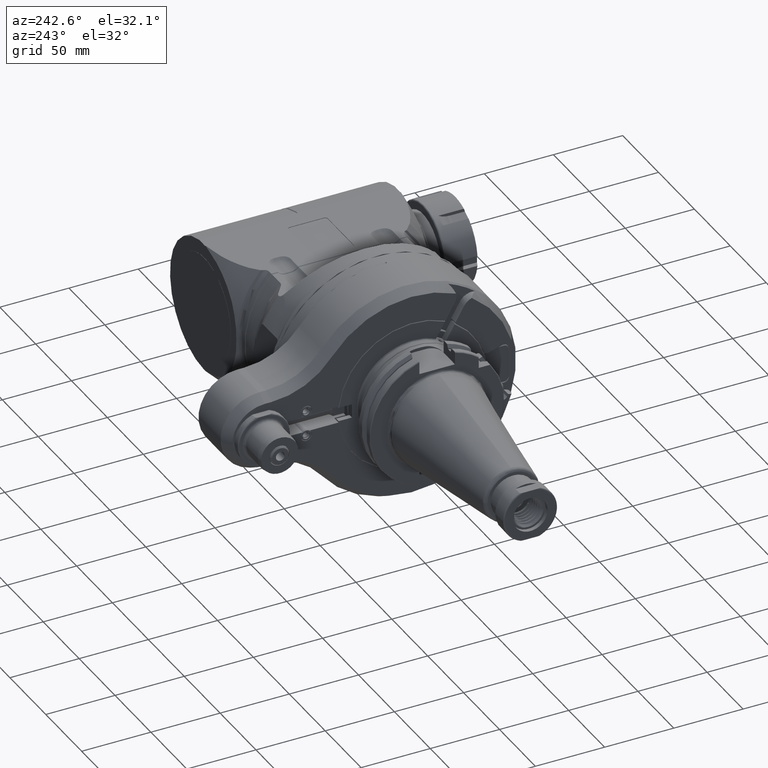
[diagram: clean part render]
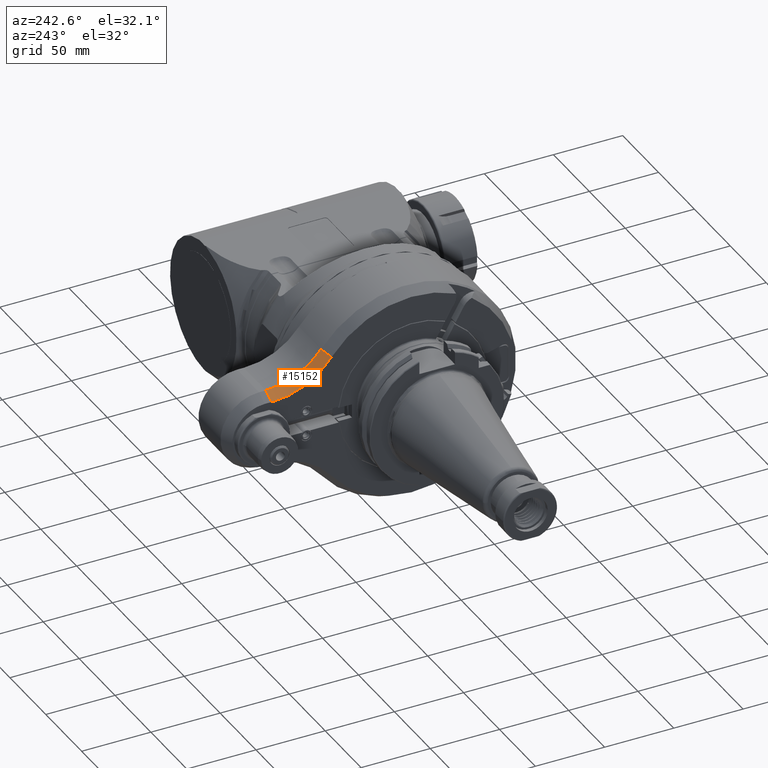
[diagram: same view with one face highlighted and labeled with its STEP entity id]
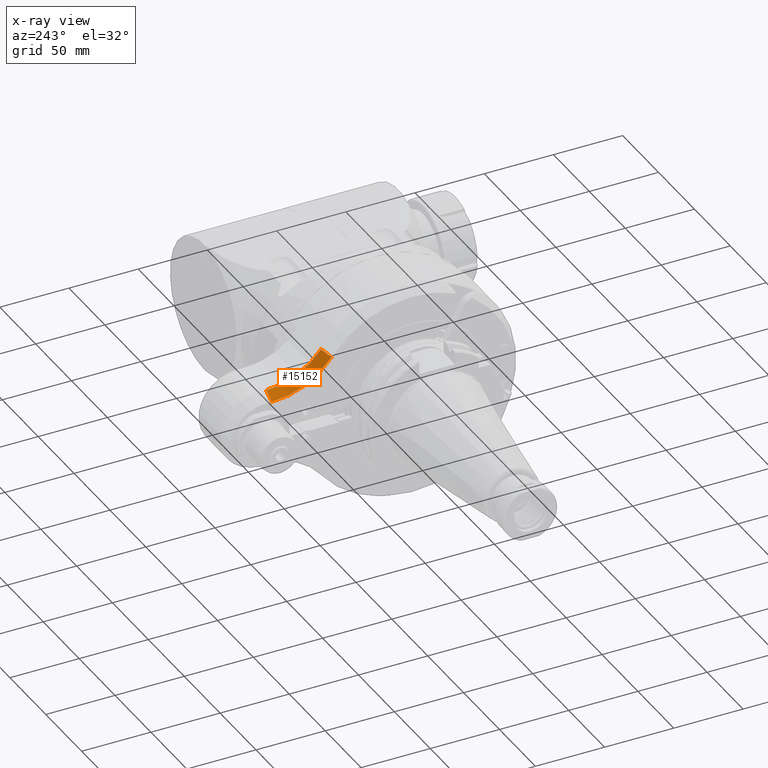
[diagram: x-ray of the same camera — body ghosted, the highlighted face saturated]
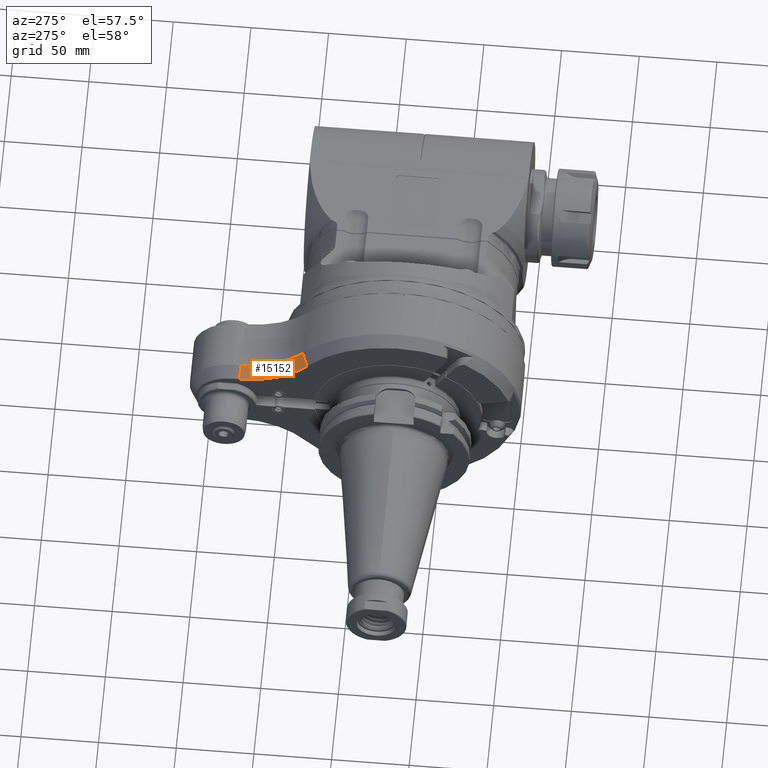
[diagram: same view with one face highlighted and labeled with its STEP entity id]
A machine part, auxiliary view. The second image highlights one B-rep face of the part: STEP entity #15152.
The next image is the same camera in x-ray: the body ghosted, the highlighted face saturated — about 0% of this face is hidden behind the body in this view.
A second angle (auxiliary view) of the same face is appended — the face is thin or edge-on in the first view.
In plain terms, the highlighted conical surface has half-angle 30 deg.
Its self-contained STEP definition (entity closure, byte-faithful):
#306=CONICAL_SURFACE('',#16168,2.05708661417323,0.523598775598299);
#1292=FACE_OUTER_BOUND('',#2153,.T.);
#2153=EDGE_LOOP('',(#10458,#10459,#10460,#10461));
#3140=LINE('',#22619,#4295);
#3141=LINE('',#22623,#4296);
#4295=VECTOR('',#18023,0.354330705548002);
#4296=VECTOR('',#18028,0.354330708661406);
#5418=CIRCLE('',#16085,2.14566929133858);
#5460=CIRCLE('',#16169,1.96850393700787);
#6203=VERTEX_POINT('',#22235);
#6204=VERTEX_POINT('',#22237);
#6261=VERTEX_POINT('',#22617);
#6262=VERTEX_POINT('',#22621);
#7825=EDGE_CURVE('',#6203,#6204,#5418,.T.);
#7931=EDGE_CURVE('',#6261,#6203,#3140,.T.);
#7932=EDGE_CURVE('',#6261,#6262,#5460,.T.);
#7933=EDGE_CURVE('',#6262,#6204,#3141,.T.);
#10458=ORIENTED_EDGE('',*,*,#7932,.T.);
#10459=ORIENTED_EDGE('',*,*,#7933,.T.);
#10460=ORIENTED_EDGE('',*,*,#7825,.F.);
#10461=ORIENTED_EDGE('',*,*,#7931,.F.);
#15152=ADVANCED_FACE('',(#1292),#306,.F.);
#16085=AXIS2_PLACEMENT_3D('',#22238,#17814,#17815);
#16168=AXIS2_PLACEMENT_3D('',#22620,#18024,#18025);
#16169=AXIS2_PLACEMENT_3D('',#22622,#18026,#18027);
#17814=DIRECTION('center_axis',(1.,0.,0.));
#17815=DIRECTION('ref_axis',(0.,-0.794698786170401,-0.607003986197201));
#18023=DIRECTION('',(-0.866025411393976,-0.397349271991789,-0.303502129922492));
#18024=DIRECTION('center_axis',(-1.,0.,0.));
#18025=DIRECTION('ref_axis',(0.,-0.794698855079091,-0.607003895980893));
#18026=DIRECTION('center_axis',(1.,0.,0.));
#18027=DIRECTION('ref_axis',(0.,-0.794698858844918,-0.607003891050614));
#18028=DIRECTION('',(-0.866025403784428,-4.65149791277015E-8,-0.500000000000016));
#22235=CARTESIAN_POINT('',(1.4566929124871,2.31526444440229,1.76843646682403));
#22237=CARTESIAN_POINT('',(1.45669291338583,4.02042529735827,0.925196850393701));
#22238=CARTESIAN_POINT('Origin',(1.45669291338583,4.02042532919685,3.07086614173228));
#22617=CARTESIAN_POINT('',(1.76355230842758,2.45605749578431,1.87597659378161));
#22619=CARTESIAN_POINT('',(1.76355230842756,2.45605749576772,1.87597659380315));
#22620=CARTESIAN_POINT('Origin',(1.61012261090669,4.02042532919685,3.07086614173228));
#22621=CARTESIAN_POINT('',(1.76355230842756,4.02042531383858,1.10236220472441));
#22622=CARTESIAN_POINT('Origin',(1.76355230842756,4.02042532919685,3.07086614173228));
#22623=CARTESIAN_POINT('',(1.76355230842756,4.02042531383858,1.10236220472441));